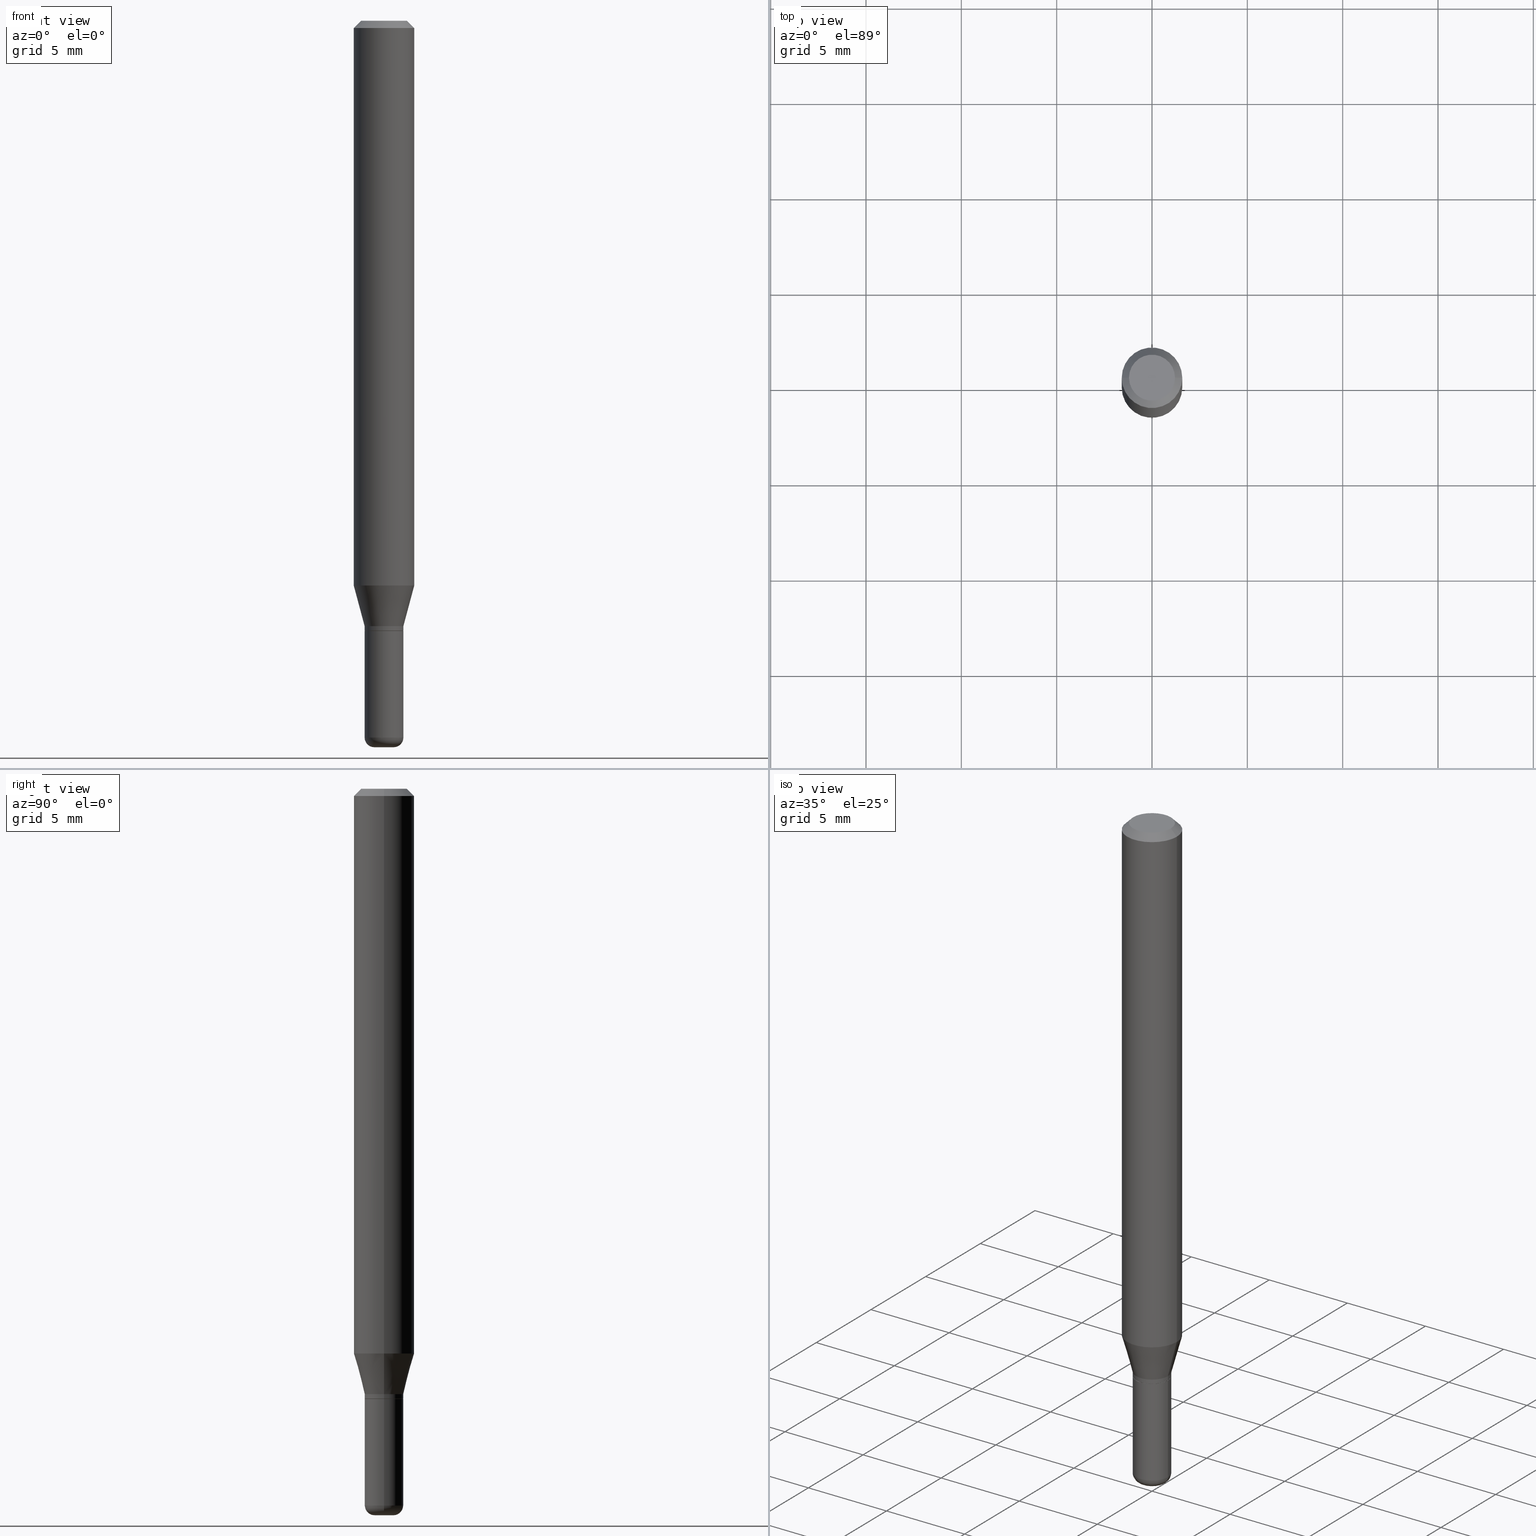
[diagram: canonical four-view strip — front | top / right | iso, engineering-drawing reading convention]
A machine part, canonical four-view strip (front | top / right | iso — engineering-drawing reading convention). The complete STEP part file that produces these views, byte-faithful:
ISO-10303-21;
HEADER;
FILE_DESCRIPTION (( 'STEP AP203' ),
    '1' );
FILE_NAME ('09051.STEP',
    '2024-02-29T21:37:54',
    ( '' ),
    ( '' ),
    'SwSTEP 2.0',
    'SolidWorks 2023',
    '' );
FILE_SCHEMA (( 'CONFIG_CONTROL_DESIGN' ));
ENDSEC;

DATA;
#1 = APPROVAL_DATE_TIME ( #487, #407 ) ;
#2 = PRODUCT_DEFINITION_FORMATION_WITH_SPECIFIED_SOURCE ( 'ANY', '', #144, .NOT_KNOWN. ) ;
#3 = FACE_OUTER_BOUND ( 'NONE', #246, .T. ) ;
#4 = PERSON_AND_ORGANIZATION ( #235, #158 ) ;
#5 = DIRECTION ( 'NONE',  ( 0.7071067811865479058, -7.319954787623257623E-15, -0.7071067811865471286 ) ) ;
#6 = CARTESIAN_POINT ( 'NONE',  ( -0.03950000000000001427, -4.115952879143013491E-15, -1.260000000000000231 ) ) ;
#7 = ORIENTED_EDGE ( 'NONE', *, *, #388, .T. ) ;
#8 = AXIS2_PLACEMENT_3D ( 'NONE', #371, #54, #454 ) ;
#9 = CARTESIAN_POINT ( 'NONE',  ( 0.04000000000000003553, -5.446710888595306494E-15, -1.479999999999999982 ) ) ;
#10 = LINE ( 'NONE', #62, #289 ) ;
#11 = FACE_OUTER_BOUND ( 'NONE', #148, .T. ) ;
#12 = CIRCLE ( 'NONE', #486, 0.06250000000000000000 ) ;
#13 = DIRECTION ( 'NONE',  ( 0.2588190451025207950, 1.565188264969625912E-15, 0.9659258262890682012 ) ) ;
#14 = LINE ( 'NONE', #374, #339 ) ;
#15 = APPROVAL ( #480, 'UNSPECIFIED' ) ;
#16 = CARTESIAN_POINT ( 'NONE',  ( -0.06250000000000000000, 3.840629472727455270E-16, -0.01499999999999970281 ) ) ;
#17 = DIRECTION ( 'NONE',  ( 1.000000000000000000, -6.982962677686269077E-15, 0.000000000000000000 ) ) ;
#18 = AXIS2_PLACEMENT_3D ( 'NONE', #277, #82, #78 ) ;
#19 = CARTESIAN_POINT ( 'NONE',  ( -6.680649051745406845E-45, 9.538196290434862081E-31, 2.731847993664263218E-16 ) ) ;
#20 = ADVANCED_FACE ( 'NONE', ( #113 ), #398, .T. ) ;
#21 = VERTEX_POINT ( 'NONE', #387 ) ;
#22 = EDGE_LOOP ( 'NONE', ( #227, #181, #314, #463 ) ) ;
#23 = ORIENTED_EDGE ( 'NONE', *, *, #336, .F. ) ;
#24 = CARTESIAN_POINT ( 'NONE',  ( 3.056836007731421306E-29, -4.364351673553932471E-15, -1.250000000000000000 ) ) ;
#25 = DIRECTION ( 'NONE',  ( -2.445468806185136597E-29, 3.491481338843145583E-15, 1.000000000000000000 ) ) ;
#26 = ORIENTED_EDGE ( 'NONE', *, *, #286, .F. ) ;
#27 = EDGE_LOOP ( 'NONE', ( #319, #74, #349, #273 ) ) ;
#28 = LINE ( 'NONE', #259, #222 ) ;
#29 = EDGE_CURVE ( 'NONE', #117, #224, #263, .T. ) ;
#30 = ORIENTED_EDGE ( 'NONE', *, *, #89, .T. ) ;
#31 = EDGE_LOOP ( 'NONE', ( #49, #513, #469, #26 ) ) ;
#32 = CARTESIAN_POINT ( 'NONE',  ( 3.668203209277632395E-31, -5.237222008264614861E-17, -0.01499999999999970281 ) ) ;
#33 = EDGE_CURVE ( 'NONE', #468, #21, #83, .T. ) ;
#34 = VERTEX_POINT ( 'NONE', #504 ) ;
#35 = DIRECTION ( 'NONE',  ( -2.445468806185136597E-29, 3.491481338843145583E-15, 1.000000000000000000 ) ) ;
#36 = ORIENTED_EDGE ( 'NONE', *, *, #237, .F. ) ;
#37 = APPLICATION_CONTEXT ( 'configuration controlled 3d designs of mechanical parts and assemblies' ) ;
#38 = VERTEX_POINT ( 'NONE', #143 ) ;
#39 = DATE_AND_TIME ( #238, #192 ) ;
#40 = FACE_OUTER_BOUND ( 'NONE', #436, .T. ) ;
#41 = AXIS2_PLACEMENT_3D ( 'NONE', #44, #35, #80 ) ;
#42 = EDGE_CURVE ( 'NONE', #167, #71, #56, .T. ) ;
#43 = COORDINATED_UNIVERSAL_TIME_OFFSET ( 5, 0, .BEHIND. ) ;
#44 = CARTESIAN_POINT ( 'NONE',  ( 3.619293833154002365E-29, -5.167392381487854879E-15, -1.479999999999999982 ) ) ;
#45 = ORIENTED_EDGE ( 'NONE', *, *, #423, .T. ) ;
#46 = SHAPE_DEFINITION_REPRESENTATION ( #346, #307 ) ;
#47 = DIRECTION ( 'NONE',  ( -2.445468806185136597E-29, 3.491481338843145583E-15, 1.000000000000000000 ) ) ;
#48 = DIRECTION ( 'NONE',  ( -2.445468806185136597E-29, 3.491481338843145583E-15, 1.000000000000000000 ) ) ;
#49 = ORIENTED_EDGE ( 'NONE', *, *, #433, .T. ) ;
#50 = VECTOR ( 'NONE', #324, 39.37007874015748143 ) ;
#51 = CARTESIAN_POINT ( 'NONE',  ( 0.02000000000000000042, -5.307051635041580686E-15, -1.479999999999999982 ) ) ;
#52 = AXIS2_PLACEMENT_3D ( 'NONE', #139, #503, #102 ) ;
#53 = AXIS2_PLACEMENT_3D ( 'NONE', #386, #460, #190 ) ;
#54 = DIRECTION ( 'NONE',  ( -2.445468806185136597E-29, 3.491481338843145583E-15, 1.000000000000000000 ) ) ;
#55 = CARTESIAN_POINT ( 'NONE',  ( 0.04000000000000001471, -4.676839253380393443E-15, -1.259500000000000064 ) ) ;
#56 = CIRCLE ( 'NONE', #350, 0.06250000000000000000 ) ;
#57 = ADVANCED_FACE ( 'NONE', ( #309 ), #448, .T. ) ;
#58 = ORIENTED_EDGE ( 'NONE', *, *, #412, .F. ) ;
#59 = VECTOR ( 'NONE', #252, 39.37007874015748143 ) ;
#60 = CARTESIAN_POINT ( 'NONE',  ( 3.081290695793272291E-29, -4.399266486942364120E-15, -1.260000000000000231 ) ) ;
#61 = ADVANCED_FACE ( 'NONE', ( #258 ), #65, .T. ) ;
#62 = CARTESIAN_POINT ( 'NONE',  ( -0.04000000000000000777, 2.842170943040401296E-16, -1.967574036101962859E-30 ) ) ;
#63 = DIRECTION ( 'NONE',  ( -1.000000000000000000, 6.982962677686266711E-15, 0.000000000000000000 ) ) ;
#64 = CARTESIAN_POINT ( 'NONE',  ( 0.04750000000000000749, -4.035134999187568762E-16, 2.731847993664288856E-16 ) ) ;
#65 = CONICAL_SURFACE ( 'NONE', #474, 0.06250000000000000000, 0.7853981633974488341 ) ;
#66 = DIRECTION ( 'NONE',  ( 1.000000000000000000, -6.982962677686257244E-15, 0.000000000000000000 ) ) ;
#67 = CC_DESIGN_APPROVAL ( #15, ( #97 ) ) ;
#68 = ORIENTED_EDGE ( 'NONE', *, *, #186, .F. ) ;
#69 = FACE_OUTER_BOUND ( 'NONE', #221, .T. ) ;
#70 = ORIENTED_EDGE ( 'NONE', *, *, #375, .T. ) ;
#71 = VERTEX_POINT ( 'NONE', #218 ) ;
#72 = DIRECTION ( 'NONE',  ( 1.000000000000000000, -6.982962677686262766E-15, 0.000000000000000000 ) ) ;
#73 = EDGE_LOOP ( 'NONE', ( #385, #353, #191, #58 ) ) ;
#74 = ORIENTED_EDGE ( 'NONE', *, *, #244, .T. ) ;
#75 = ORIENTED_EDGE ( 'NONE', *, *, #184, .F. ) ;
#76 = CONICAL_SURFACE ( 'NONE', #265, 0.03950000000000001427, 0.7853981633972775267 ) ;
#77 = DATE_AND_TIME ( #400, #466 ) ;
#78 = DIRECTION ( 'NONE',  ( 1.000000000000000000, -6.982962677686259611E-15, 0.000000000000000000 ) ) ;
#79 = PERSON_AND_ORGANIZATION ( #235, #158 ) ;
#80 = DIRECTION ( 'NONE',  ( 1.000000000000000000, -6.982962677686277755E-15, 0.000000000000000000 ) ) ;
#81 = PERSON_AND_ORGANIZATION_ROLE ( 'design_owner' ) ;
#82 = DIRECTION ( 'NONE',  ( -2.445468806185136597E-29, 3.491481338843145583E-15, 1.000000000000000000 ) ) ;
#83 = CIRCLE ( 'NONE', #376, 0.04750000000000000749 ) ;
#84 = CIRCLE ( 'NONE', #41, 0.04000000000000003553 ) ;
#85 = COORDINATED_UNIVERSAL_TIME_OFFSET ( 5, 0, .BEHIND. ) ;
#86 = CIRCLE ( 'NONE', #340, 0.03950000000000001427 ) ;
#87 = CARTESIAN_POINT ( 'NONE',  ( 3.081290695793272291E-29, -4.399266486942364120E-15, -1.260000000000000231 ) ) ;
#88 = ORIENTED_EDGE ( 'NONE', *, *, #375, .F. ) ;
#89 = EDGE_CURVE ( 'NONE', #311, #312, #170, .T. ) ;
#90 = CARTESIAN_POINT ( 'NONE',  ( -0.04000000000000003553, -4.499112339911069567E-15, -1.479999999999999982 ) ) ;
#91 = CARTESIAN_POINT ( 'NONE',  ( 0.06250000000000000000, -4.364351673553916694E-16, 3.047610484872459871E-30 ) ) ;
#92 = APPROVAL ( #328, 'UNSPECIFIED' ) ;
#93 = AXIS2_PLACEMENT_3D ( 'NONE', #297, #175, #453 ) ;
#94 = DIRECTION ( 'NONE',  ( 2.438088387897960049E-29, -3.491481338843145188E-15, -1.000000000000000000 ) ) ;
#95 = AXIS2_PLACEMENT_3D ( 'NONE', #308, #462, #217 ) ;
#96 = DIRECTION ( 'NONE',  ( -2.445468806185136877E-29, 3.491481338843145188E-15, 1.000000000000000000 ) ) ;
#97 = PRODUCT_DEFINITION ( 'UNKNOWN', '', #2, #253 ) ;
#98 = CARTESIAN_POINT ( 'NONE',  ( -0.04000000000000001471, -4.113303651968902290E-15, -1.259500000000000064 ) ) ;
#99 = CIRCLE ( 'NONE', #116, 0.03950000000000001427 ) ;
#100 = CYLINDRICAL_SURFACE ( 'NONE', #93, 0.04000000000000001471 ) ;
#101 = APPROVAL_PERSON_ORGANIZATION ( #355, #407, #280 ) ;
#102 = DIRECTION ( 'NONE',  ( 1.000000000000000000, -6.982962677686271444E-15, 0.000000000000000000 ) ) ;
#103 = CARTESIAN_POINT ( 'NONE',  ( 0.04000000000000001471, -2.793185071074507769E-16, 1.950470710318375438E-30 ) ) ;
#104 = DIRECTION ( 'NONE',  ( 1.000000000000000000, -6.982962677686266711E-15, 0.000000000000000000 ) ) ;
#105 = DIRECTION ( 'NONE',  ( 1.000000000000000000, -6.982962677686269077E-15, 0.000000000000000000 ) ) ;
#106 = TOROIDAL_SURFACE ( 'NONE', #164, 0.02000000000000000042, 0.02000000000000003164 ) ;
#107 = APPLICATION_CONTEXT ( 'configuration controlled 3d designs of mechanical parts and assemblies' ) ;
#108 = CARTESIAN_POINT ( 'NONE',  ( 3.668203209277632395E-31, -5.237222008264614861E-17, -0.01499999999999970281 ) ) ;
#109 = AXIS2_PLACEMENT_3D ( 'NONE', #389, #146, #220 ) ;
#110 = DIRECTION ( 'NONE',  ( -2.445468806185136597E-29, 3.491481338843145583E-15, 1.000000000000000000 ) ) ;
#111 = ORIENTED_EDGE ( 'NONE', *, *, #138, .T. ) ;
#112 = EDGE_CURVE ( 'NONE', #21, #468, #128, .T. ) ;
#113 = FACE_OUTER_BOUND ( 'NONE', #394, .T. ) ;
#114 = APPROVAL_ROLE ( '' ) ;
#115 = CARTESIAN_POINT ( 'NONE',  ( -0.02000000000000000389, -4.989144374148256283E-15, -1.500000000000000222 ) ) ;
#116 = AXIS2_PLACEMENT_3D ( 'NONE', #60, #332, #256 ) ;
#117 = VERTEX_POINT ( 'NONE', #90 ) ;
#118 = AXIS2_PLACEMENT_3D ( 'NONE', #268, #152, #72 ) ;
#119 = DATE_TIME_ROLE ( 'classification_date' ) ;
#120 = ADVANCED_FACE ( 'NONE', ( #397 ), #76, .T. ) ;
#121 = DIRECTION ( 'NONE',  ( -2.445468806185136877E-29, 3.491481338843145188E-15, 1.000000000000000000 ) ) ;
#122 = VERTEX_POINT ( 'NONE', #127 ) ;
#123 = PERSON_AND_ORGANIZATION ( #235, #158 ) ;
#124 = PLANE ( 'NONE',  #189 ) ;
#125 = ORIENTED_EDGE ( 'NONE', *, *, #112, .F. ) ;
#126 = SECURITY_CLASSIFICATION_LEVEL ( 'unclassified' ) ;
#127 = CARTESIAN_POINT ( 'NONE',  ( 0.06250000000000000000, -4.507603161528897181E-15, -1.166028856829700366 ) ) ;
#128 = CIRCLE ( 'NONE', #377, 0.04750000000000000749 ) ;
#129 = COORDINATED_UNIVERSAL_TIME_OFFSET ( 5, 0, .BEHIND. ) ;
#130 = DIRECTION ( 'NONE',  ( 1.000000000000000000, -6.982962677686266711E-15, 4.876176775795935793E-29 ) ) ;
#131 = ADVANCED_FACE ( 'NONE', ( #405 ), #124, .F. ) ;
#132 = FACE_OUTER_BOUND ( 'NONE', #282, .T. ) ;
#133 = CARTESIAN_POINT ( 'NONE',  ( 3.582686580359766038E-29, -5.359686688179453325E-15, -1.500000000000000222 ) ) ;
#134 = CIRCLE ( 'NONE', #157, 0.04000000000000001471 ) ;
#135 = CARTESIAN_POINT ( 'NONE',  ( 0.000000000000000000, 0.000000000000000000, 0.000000000000000000 ) ) ;
#136 = CYLINDRICAL_SURFACE ( 'NONE', #242, 0.04000000000000000777 ) ;
#137 = DIRECTION ( 'NONE',  ( 1.000000000000000000, -6.982962677686266711E-15, 4.876176775795935793E-29 ) ) ;
#138 = EDGE_CURVE ( 'NONE', #71, #167, #213, .T. ) ;
#139 = CARTESIAN_POINT ( 'NONE',  ( 3.056836007731421306E-29, -4.364351673553932471E-15, -1.250000000000000000 ) ) ;
#140 = ORIENTED_EDGE ( 'NONE', *, *, #89, .F. ) ;
#141 = CARTESIAN_POINT ( 'NONE',  ( 3.081290695793272291E-29, -4.399266486942364120E-15, -1.260000000000000231 ) ) ;
#142 = PRODUCT_RELATED_PRODUCT_CATEGORY ( 'detail', '', ( #144 ) ) ;
#143 = CARTESIAN_POINT ( 'NONE',  ( -0.04000000000000000083, -4.499112339911069567E-15, -1.260000000000000231 ) ) ;
#144 = PRODUCT ( '09051', '09051', '', ( #380 ) ) ;
#145 = CARTESIAN_POINT ( 'NONE',  ( 3.668203209277632395E-31, -5.237222008264614861E-17, -0.01499999999999970281 ) ) ;
#146 = DIRECTION ( 'NONE',  ( 7.105427357601001859E-15, 1.000000000000000000, -3.491481338843145583E-15 ) ) ;
#147 = TOROIDAL_SURFACE ( 'NONE', #329, 0.02000000000000000042, 0.02000000000000003164 ) ;
#148 = EDGE_LOOP ( 'NONE', ( #299, #506, #512, #402 ) ) ;
#149 = ADVANCED_FACE ( 'NONE', ( #3 ), #488, .T. ) ;
#150 = EDGE_LOOP ( 'NONE', ( #45, #479, #36, #514 ) ) ;
#151 = VERTEX_POINT ( 'NONE', #401 ) ;
#152 = DIRECTION ( 'NONE',  ( -2.445468806185136597E-29, 3.491481338843145583E-15, 1.000000000000000000 ) ) ;
#153 = ORIENTED_EDGE ( 'NONE', *, *, #388, .F. ) ;
#154 = ORIENTED_EDGE ( 'NONE', *, *, #433, .F. ) ;
#155 = PERSON_AND_ORGANIZATION_ROLE ( 'creator' ) ;
#156 = DIRECTION ( 'NONE',  ( -2.438088387897960049E-29, 3.491481338843145188E-15, 1.000000000000000000 ) ) ;
#157 = AXIS2_PLACEMENT_3D ( 'NONE', #207, #366, #327 ) ;
#158 = ORGANIZATION ( 'UNSPECIFIED', 'UNSPECIFIED', '' ) ;
#159 = CARTESIAN_POINT ( 'NONE',  ( -0.06250000000000000000, 4.440892098500626162E-16, -3.074334431409316114E-30 ) ) ;
#160 = CARTESIAN_POINT ( 'NONE',  ( 0.06250000000000000000, -4.811533449433669144E-16, -0.01499999999999970281 ) ) ;
#161 = COORDINATED_UNIVERSAL_TIME_OFFSET ( 5, 0, .BEHIND. ) ;
#162 = DIRECTION ( 'NONE',  ( -2.445468806185136597E-29, 3.491481338843145583E-15, 1.000000000000000000 ) ) ;
#163 = CLOSED_SHELL ( 'NONE', ( #317, #120, #61, #285, #485, #20, #149, #57, #404, #131, #451, #174 ) ) ;
#164 = AXIS2_PLACEMENT_3D ( 'NONE', #321, #169, #251 ) ;
#165 = ORIENTED_EDGE ( 'NONE', *, *, #484, .F. ) ;
#166 = LINE ( 'NONE', #160, #219 ) ;
#167 = VERTEX_POINT ( 'NONE', #331 ) ;
#168 = CARTESIAN_POINT ( 'NONE',  ( 2.793185071074814439E-16, 0.03999999999999560157, -1.260000000000000453 ) ) ;
#169 = DIRECTION ( 'NONE',  ( -2.445468806185136597E-29, 3.491481338843145583E-15, 1.000000000000000000 ) ) ;
#170 = CIRCLE ( 'NONE', #415, 0.04000000000000001471 ) ;
#171 = CYLINDRICAL_SURFACE ( 'NONE', #8, 0.04000000000000001471 ) ;
#172 = APPROVAL_PERSON_ORGANIZATION ( #396, #92, #437 ) ;
#173 = DIRECTION ( 'NONE',  ( -2.445468806185136597E-29, 3.491481338843145583E-15, 1.000000000000000000 ) ) ;
#174 = ADVANCED_FACE ( 'NONE', ( #40 ), #442, .T. ) ;
#175 = DIRECTION ( 'NONE',  ( -2.445468806185136597E-29, 3.491481338843145583E-15, 1.000000000000000000 ) ) ;
#176 = VERTEX_POINT ( 'NONE', #6 ) ;
#177 = AXIS2_PLACEMENT_3D ( 'NONE', #206, #395, #241 ) ;
#178 = DIRECTION ( 'NONE',  ( -2.445468806185136597E-29, 3.491481338843145583E-15, 1.000000000000000000 ) ) ;
#179 = ORIENTED_EDGE ( 'NONE', *, *, #42, .T. ) ;
#180 = LOCAL_TIME ( 16, 37, 54.00000000000000000, #403 ) ;
#181 = ORIENTED_EDGE ( 'NONE', *, *, #184, .T. ) ;
#182 = DIRECTION ( 'NONE',  ( 1.000000000000000000, -6.982962677686271444E-15, 0.000000000000000000 ) ) ;
#183 = EDGE_LOOP ( 'NONE', ( #422, #197, #179, #153 ) ) ;
#184 = EDGE_CURVE ( 'NONE', #151, #71, #239, .T. ) ;
#185 = CARTESIAN_POINT ( 'NONE',  ( 3.081290695793272291E-29, -4.399266486942364120E-15, -1.260000000000000231 ) ) ;
#186 = EDGE_CURVE ( 'NONE', #468, #167, #166, .T. ) ;
#187 = DIRECTION ( 'NONE',  ( 2.445468806185136597E-29, -3.491481338843145583E-15, -1.000000000000000000 ) ) ;
#188 = ORIENTED_EDGE ( 'NONE', *, *, #262, .T. ) ;
#189 = AXIS2_PLACEMENT_3D ( 'NONE', #87, #156, #434 ) ;
#190 = DIRECTION ( 'NONE',  ( 1.000000000000000000, -6.982962677686271444E-15, 0.000000000000000000 ) ) ;
#191 = ORIENTED_EDGE ( 'NONE', *, *, #262, .F. ) ;
#192 = LOCAL_TIME ( 16, 37, 54.00000000000000000, #85 ) ;
#193 = ORIENTED_EDGE ( 'NONE', *, *, #250, .F. ) ;
#194 = MANIFOLD_SOLID_BREP ( 'Body-Move/Copy2[2]', #163 ) ;
#195 = VERTEX_POINT ( 'NONE', #245 ) ;
#196 = PERSON_AND_ORGANIZATION_ROLE ( 'design_supplier' ) ;
#197 = ORIENTED_EDGE ( 'NONE', *, *, #186, .T. ) ;
#198 = EDGE_CURVE ( 'NONE', #312, #311, #134, .T. ) ;
#199 = FACE_OUTER_BOUND ( 'NONE', #27, .T. ) ;
#200 = CC_DESIGN_PERSON_AND_ORGANIZATION_ASSIGNMENT ( #482, #81, ( #144 ) ) ;
#201 = CALENDAR_DATE ( 2024, 29, 2 ) ;
#202 = CARTESIAN_POINT ( 'NONE',  ( 0.000000000000000000, 0.000000000000000000, 0.000000000000000000 ) ) ;
#203 = AXIS2_PLACEMENT_3D ( 'NONE', #440, #208, #478 ) ;
#204 = SECURITY_CLASSIFICATION ( '', '', #126 ) ;
#205 = DATE_AND_TIME ( #283, #267 ) ;
#206 = CARTESIAN_POINT ( 'NONE',  ( 3.081290695793272291E-29, -4.399266486942364120E-15, -1.260000000000000231 ) ) ;
#207 = CARTESIAN_POINT ( 'NONE',  ( 3.080067961390179490E-29, -4.397520746272941828E-15, -1.259500000000000064 ) ) ;
#208 = DIRECTION ( 'NONE',  ( -2.445468806185136597E-29, 3.491481338843145583E-15, 1.000000000000000000 ) ) ;
#209 = CIRCLE ( 'NONE', #18, 0.04000000000000000083 ) ;
#210 = DIRECTION ( 'NONE',  ( 1.000000000000000000, -6.982962677686272233E-15, 0.000000000000000000 ) ) ;
#211 = DIRECTION ( 'NONE',  ( 1.000000000000000000, -6.982962677686266711E-15, 4.876176775795935793E-29 ) ) ;
#212 = PLANE ( 'NONE',  #295 ) ;
#213 = CIRCLE ( 'NONE', #334, 0.06250000000000000000 ) ;
#214 = LINE ( 'NONE', #16, #391 ) ;
#215 = CYLINDRICAL_SURFACE ( 'NONE', #493, 0.06250000000000000000 ) ;
#216 = EDGE_CURVE ( 'NONE', #312, #390, #446, .T. ) ;
#217 = DIRECTION ( 'NONE',  ( 1.000000000000000000, 0.000000000000000000, 0.000000000000000000 ) ) ;
#218 = CARTESIAN_POINT ( 'NONE',  ( -0.06250000000000000000, -1.617680897278012693E-15, -0.01499999999999970281 ) ) ;
#219 = VECTOR ( 'NONE', #5, 39.37007874015748143 ) ;
#220 = DIRECTION ( 'NONE',  ( -1.000000000000000000, 7.105427357601009747E-15, 0.000000000000000000 ) ) ;
#221 = EDGE_LOOP ( 'NONE', ( #316, #421, #223, #140 ) ) ;
#222 = VECTOR ( 'NONE', #420, 39.37007874015748854 ) ;
#223 = ORIENTED_EDGE ( 'NONE', *, *, #354, .T. ) ;
#224 = VERTEX_POINT ( 'NONE', #9 ) ;
#225 = DIRECTION ( 'NONE',  ( 1.000000000000000000, -6.982962677686282488E-15, 0.000000000000000000 ) ) ;
#226 = DIRECTION ( 'NONE',  ( -2.445468806185136597E-29, 3.491481338843145583E-15, 1.000000000000000000 ) ) ;
#227 = ORIENTED_EDGE ( 'NONE', *, *, #237, .T. ) ;
#228 = CARTESIAN_POINT ( 'NONE',  ( 0.02000000000000000389, -5.376881261818443984E-15, -1.500000000000000222 ) ) ;
#229 = VERTEX_POINT ( 'NONE', #115 ) ;
#230 = EDGE_LOOP ( 'NONE', ( #154, #475 ) ) ;
#231 = CIRCLE ( 'NONE', #300, 0.04000000000000000083 ) ;
#232 = CARTESIAN_POINT ( 'NONE',  ( 0.03950000000000001427, -4.675093512710971939E-15, -1.260000000000000231 ) ) ;
#233 = DIRECTION ( 'NONE',  ( 1.000000000000000000, -6.982962677686277755E-15, 0.000000000000000000 ) ) ;
#234 = EDGE_LOOP ( 'NONE', ( #193, #357, #384, #507 ) ) ;
#235 = PERSON ( 'UNSPECIFIED', 'UNSPECIFIED', 'UNSPECIFIED', ('UNSPECIFIED'), ('UNSPECIFIED'), ('UNSPECIFIED') ) ;
#236 = CARTESIAN_POINT ( 'NONE',  ( 0.000000000000000000, 0.000000000000000000, 0.000000000000000000 ) ) ;
#237 = EDGE_CURVE ( 'NONE', #122, #151, #12, .T. ) ;
#238 = CALENDAR_DATE ( 2024, 29, 2 ) ;
#239 = LINE ( 'NONE', #159, #431 ) ;
#240 = PERSON_AND_ORGANIZATION ( #235, #158 ) ;
#241 = DIRECTION ( 'NONE',  ( 1.000000000000000000, -6.982962677686259611E-15, 0.000000000000000000 ) ) ;
#242 = AXIS2_PLACEMENT_3D ( 'NONE', #135, #449, #137 ) ;
#243 = CIRCLE ( 'NONE', #383, 0.02000000000000000389 ) ;
#244 = EDGE_CURVE ( 'NONE', #229, #459, #255, .T. ) ;
#245 = CARTESIAN_POINT ( 'NONE',  ( 0.04000000000000000083, -4.678584994049814947E-15, -1.260000000000000231 ) ) ;
#246 = EDGE_LOOP ( 'NONE', ( #75, #310, #515, #518 ) ) ;
#247 = PERSON_AND_ORGANIZATION_ROLE ( 'creator' ) ;
#248 = CARTESIAN_POINT ( 'NONE',  ( -0.04000000000000001471, 2.842170943040401789E-16, -1.967574036101963210E-30 ) ) ;
#249 = DIRECTION ( 'NONE',  ( -2.445468806185136597E-29, 3.491481338843145583E-15, 1.000000000000000000 ) ) ;
#250 = EDGE_CURVE ( 'NONE', #117, #38, #281, .T. ) ;
#251 = DIRECTION ( 'NONE',  ( 1.000000000000000000, -6.982962677686278543E-15, 4.883557194083116264E-29 ) ) ;
#252 = DIRECTION ( 'NONE',  ( 0.7071067811864267805, -2.468850131080992517E-15, 0.7071067811866682540 ) ) ;
#253 = DESIGN_CONTEXT ( 'detailed design', #107, 'design' ) ;
#254 = FACE_OUTER_BOUND ( 'NONE', #502, .T. ) ;
#255 = CIRCLE ( 'NONE', #203, 0.02000000000000000389 ) ;
#256 = DIRECTION ( 'NONE',  ( 1.000000000000000000, -6.982962677686269077E-15, 0.000000000000000000 ) ) ;
#257 = DIRECTION ( 'NONE',  ( -1.000000000000000000, 6.982962677686265922E-15, -4.876176775795935793E-29 ) ) ;
#258 = FACE_OUTER_BOUND ( 'NONE', #183, .T. ) ;
#259 = CARTESIAN_POINT ( 'NONE',  ( -0.04000000000000000083, -4.080134579249892145E-15, -1.250000000000000000 ) ) ;
#260 = DIRECTION ( 'NONE',  ( -2.445468806185136597E-29, 3.491481338843145583E-15, 1.000000000000000000 ) ) ;
#261 = EDGE_CURVE ( 'NONE', #38, #195, #209, .T. ) ;
#262 = EDGE_CURVE ( 'NONE', #195, #38, #360, .T. ) ;
#263 = CIRCLE ( 'NONE', #510, 0.04000000000000003553 ) ;
#264 = ORIENTED_EDGE ( 'NONE', *, *, #450, .F. ) ;
#265 = AXIS2_PLACEMENT_3D ( 'NONE', #365, #162, #368 ) ;
#266 = DIRECTION ( 'NONE',  ( 2.445468806185136597E-29, -3.491481338843145583E-15, -1.000000000000000000 ) ) ;
#267 = LOCAL_TIME ( 16, 37, 54.00000000000000000, #43 ) ;
#268 = CARTESIAN_POINT ( 'NONE',  ( 2.851487196488747125E-29, -4.071167994173504722E-15, -1.166028856829700366 ) ) ;
#269 = ORIENTED_EDGE ( 'NONE', *, *, #261, .T. ) ;
#270 = EDGE_CURVE ( 'NONE', #224, #117, #84, .T. ) ;
#271 = LENGTH_MEASURE_WITH_UNIT ( LENGTH_MEASURE( 0.02539999999999999897 ), #301 );
#272 = CARTESIAN_POINT ( 'NONE',  ( 3.056836007731421306E-29, -4.364351673553932471E-15, -1.250000000000000000 ) ) ;
#273 = ORIENTED_EDGE ( 'NONE', *, *, #29, .F. ) ;
#274 = AXIS2_PLACEMENT_3D ( 'NONE', #236, #47, #130 ) ;
#275 = APPLICATION_PROTOCOL_DEFINITION ( 'international standard', 'config_control_design', 1994, #107 ) ;
#276 = ADVANCED_FACE ( 'NONE', ( #199 ), #106, .T. ) ;
#277 = CARTESIAN_POINT ( 'NONE',  ( 3.081290695793272291E-29, -4.399266486942364120E-15, -1.260000000000000231 ) ) ;
#278 = APPROVAL_PERSON_ORGANIZATION ( #439, #15, #114 ) ;
#279 = EDGE_LOOP ( 'NONE', ( #88, #264 ) ) ;
#280 = APPROVAL_ROLE ( '' ) ;
#281 = LINE ( 'NONE', #248, #351 ) ;
#282 = EDGE_LOOP ( 'NONE', ( #306, #356 ) ) ;
#283 = CALENDAR_DATE ( 2024, 29, 2 ) ;
#284 = DIRECTION ( 'NONE',  ( -2.445468806185136597E-29, 3.491481338843145583E-15, 1.000000000000000000 ) ) ;
#285 = ADVANCED_FACE ( 'NONE', ( #516 ), #215, .T. ) ;
#286 = EDGE_CURVE ( 'NONE', #459, #224, #511, .T. ) ;
#287 = PERSON_AND_ORGANIZATION_ROLE ( 'classification_officer' ) ;
#288 = DIRECTION ( 'NONE',  ( 1.000000000000000000, -6.982962677686266711E-15, 0.000000000000000000 ) ) ;
#289 = VECTOR ( 'NONE', #96, 39.37007874015748143 ) ;
#290 = APPROVAL_DATE_TIME ( #77, #15 ) ;
#291 = DIRECTION ( 'NONE',  ( 1.000000000000000000, -6.982962677686266711E-15, 4.876176775795935793E-29 ) ) ;
#292 = ADVANCED_FACE ( 'NONE', ( #379 ), #212, .F. ) ;
#293 = PLANE ( 'NONE',  #456 ) ;
#294 = DIRECTION ( 'NONE',  ( -2.438088387897960049E-29, 3.491481338843145188E-15, 1.000000000000000000 ) ) ;
#295 = AXIS2_PLACEMENT_3D ( 'NONE', #133, #294, #494 ) ;
#296 = CIRCLE ( 'NONE', #109, 0.02000000000000003511 ) ;
#297 = CARTESIAN_POINT ( 'NONE',  ( 0.000000000000000000, 0.000000000000000000, 0.000000000000000000 ) ) ;
#298 = FACE_OUTER_BOUND ( 'NONE', #73, .T. ) ;
#299 = ORIENTED_EDGE ( 'NONE', *, *, #198, .T. ) ;
#300 = AXIS2_PLACEMENT_3D ( 'NONE', #24, #110, #348 ) ;
#301 =( LENGTH_UNIT ( ) NAMED_UNIT ( * ) SI_UNIT ( $, .METRE. ) );
#302 = ORIENTED_EDGE ( 'NONE', *, *, #354, .F. ) ;
#303 = ADVANCED_FACE ( 'NONE', ( #298 ), #171, .T. ) ;
#304 = DIRECTION ( 'NONE',  ( -2.445468806185136597E-29, 3.491481338843145583E-15, 1.000000000000000000 ) ) ;
#305 = DIRECTION ( 'NONE',  ( -1.000000000000000000, 6.982962677686266711E-15, 0.000000000000000000 ) ) ;
#306 = ORIENTED_EDGE ( 'NONE', *, *, #112, .T. ) ;
#307 = ADVANCED_BREP_SHAPE_REPRESENTATION ( '09051', ( #370, #194, #95 ), #443 ) ;
#308 = CARTESIAN_POINT ( 'NONE',  ( 0.000000000000000000, 0.000000000000000000, 0.000000000000000000 ) ) ;
#309 = FACE_OUTER_BOUND ( 'NONE', #473, .T. ) ;
#310 = ORIENTED_EDGE ( 'NONE', *, *, #424, .T. ) ;
#311 = VERTEX_POINT ( 'NONE', #98 ) ;
#312 = VERTEX_POINT ( 'NONE', #55 ) ;
#313 = EDGE_CURVE ( 'NONE', #122, #167, #372, .T. ) ;
#314 = ORIENTED_EDGE ( 'NONE', *, *, #42, .F. ) ;
#315 =( CONVERSION_BASED_UNIT ( 'INCH', #271 ) LENGTH_UNIT ( ) NAMED_UNIT ( #497 ) );
#316 = ORIENTED_EDGE ( 'NONE', *, *, #458, .F. ) ;
#317 = ADVANCED_FACE ( 'NONE', ( #11 ), #136, .T. ) ;
#318 = DIRECTION ( 'NONE',  ( -2.445468806185136597E-29, 3.491481338843145583E-15, 1.000000000000000000 ) ) ;
#319 = ORIENTED_EDGE ( 'NONE', *, *, #464, .F. ) ;
#320 = AXIS2_PLACEMENT_3D ( 'NONE', #202, #438, #291 ) ;
#321 = CARTESIAN_POINT ( 'NONE',  ( 3.619293833154002365E-29, -5.167392381487854879E-15, -1.479999999999999982 ) ) ;
#322 = ORIENTED_EDGE ( 'NONE', *, *, #472, .F. ) ;
#323 = ADVANCED_FACE ( 'NONE', ( #498 ), #100, .T. ) ;
#324 = DIRECTION ( 'NONE',  ( -2.445468806185136877E-29, 3.491481338843145188E-15, 1.000000000000000000 ) ) ;
#325 = CC_DESIGN_PERSON_AND_ORGANIZATION_ASSIGNMENT ( #123, #287, ( #204 ) ) ;
#326 = DATE_TIME_ROLE ( 'creation_date' ) ;
#327 = DIRECTION ( 'NONE',  ( 1.000000000000000000, -6.982962677686257244E-15, 0.000000000000000000 ) ) ;
#328 = APPROVAL_STATUS ( 'not_yet_approved' ) ;
#329 = AXIS2_PLACEMENT_3D ( 'NONE', #499, #249, #413 ) ;
#330 = CARTESIAN_POINT ( 'NONE',  ( 0.04000000000000000777, -2.793185071074507276E-16, 1.950470710318374738E-30 ) ) ;
#331 = CARTESIAN_POINT ( 'NONE',  ( 0.06250000000000000000, -4.888073874380378612E-16, -0.01499999999999970281 ) ) ;
#332 = DIRECTION ( 'NONE',  ( -2.445468806185136597E-29, 3.491481338843145583E-15, 1.000000000000000000 ) ) ;
#333 = DIRECTION ( 'NONE',  ( -6.982962677686266711E-15, -1.000000000000000000, 3.491481338843145583E-15 ) ) ;
#334 = AXIS2_PLACEMENT_3D ( 'NONE', #362, #48, #288 ) ;
#335 = PLANE ( 'NONE',  #441 ) ;
#336 = EDGE_CURVE ( 'NONE', #311, #34, #10, .T. ) ;
#337 = LINE ( 'NONE', #490, #59 ) ;
#338 = DIRECTION ( 'NONE',  ( -2.445468806185136597E-29, 3.491481338843145583E-15, 1.000000000000000000 ) ) ;
#339 = VECTOR ( 'NONE', #13, 39.37007874015748854 ) ;
#340 = AXIS2_PLACEMENT_3D ( 'NONE', #185, #178, #17 ) ;
#341 = LINE ( 'NONE', #428, #452 ) ;
#342 = DIRECTION ( 'NONE',  ( -2.445468806185136597E-29, 3.491481338843145583E-15, 1.000000000000000000 ) ) ;
#343 = APPLICATION_PROTOCOL_DEFINITION ( 'international standard', 'config_control_design', 1994, #37 ) ;
#344 = CC_DESIGN_DATE_AND_TIME_ASSIGNMENT ( #205, #326, ( #97 ) ) ;
#345 = DIRECTION ( 'NONE',  ( 1.000000000000000000, -6.982962677686266711E-15, 4.852736867747365086E-29 ) ) ;
#346 = PRODUCT_DEFINITION_SHAPE ( 'NONE', 'NONE',  #97 ) ;
#347 = ORIENTED_EDGE ( 'NONE', *, *, #458, .T. ) ;
#348 = DIRECTION ( 'NONE',  ( 1.000000000000000000, -6.982962677686271444E-15, 0.000000000000000000 ) ) ;
#349 = ORIENTED_EDGE ( 'NONE', *, *, #286, .T. ) ;
#350 = AXIS2_PLACEMENT_3D ( 'NONE', #145, #25, #104 ) ;
#351 = VECTOR ( 'NONE', #406, 39.37007874015748143 ) ;
#352 = FACE_OUTER_BOUND ( 'NONE', #150, .T. ) ;
#353 = ORIENTED_EDGE ( 'NONE', *, *, #250, .T. ) ;
#354 = EDGE_CURVE ( 'NONE', #509, #312, #337, .T. ) ;
#355 = PERSON_AND_ORGANIZATION ( #235, #158 ) ;
#356 = ORIENTED_EDGE ( 'NONE', *, *, #33, .T. ) ;
#357 = ORIENTED_EDGE ( 'NONE', *, *, #29, .T. ) ;
#358 = ORIENTED_EDGE ( 'NONE', *, *, #198, .F. ) ;
#359 = ADVANCED_FACE ( 'NONE', ( #378 ), #147, .T. ) ;
#360 = CIRCLE ( 'NONE', #177, 0.04000000000000000083 ) ;
#361 = DATE_AND_TIME ( #364, #457 ) ;
#362 = CARTESIAN_POINT ( 'NONE',  ( 3.668203209277632395E-31, -5.237222008264614861E-17, -0.01499999999999970281 ) ) ;
#363 = CONICAL_SURFACE ( 'NONE', #435, 0.03950000000000001427, 0.7853981633972775267 ) ;
#364 = CALENDAR_DATE ( 2024, 29, 2 ) ;
#365 = CARTESIAN_POINT ( 'NONE',  ( 3.081290695793272291E-29, -4.399266486942364120E-15, -1.260000000000000231 ) ) ;
#366 = DIRECTION ( 'NONE',  ( -2.445468806185136597E-29, 3.491481338843145583E-15, 1.000000000000000000 ) ) ;
#367 = EDGE_CURVE ( 'NONE', #390, #122, #14, .T. ) ;
#368 = DIRECTION ( 'NONE',  ( 1.000000000000000000, -6.982962677686269077E-15, 0.000000000000000000 ) ) ;
#369 = CC_DESIGN_PERSON_AND_ORGANIZATION_ASSIGNMENT ( #240, #247, ( #97 ) ) ;
#370 = MANIFOLD_SOLID_BREP ( 'Body-Move/Copy2[1]', #492 ) ;
#371 = CARTESIAN_POINT ( 'NONE',  ( 0.000000000000000000, 0.000000000000000000, 0.000000000000000000 ) ) ;
#372 = LINE ( 'NONE', #91, #465 ) ;
#373 = ADVANCED_FACE ( 'NONE', ( #254 ), #335, .F. ) ;
#374 = CARTESIAN_POINT ( 'NONE',  ( 0.04000000000000000083, -4.643670180661383298E-15, -1.250000000000000000 ) ) ;
#375 = EDGE_CURVE ( 'NONE', #509, #176, #99, .T. ) ;
#376 = AXIS2_PLACEMENT_3D ( 'NONE', #392, #342, #345 ) ;
#377 = AXIS2_PLACEMENT_3D ( 'NONE', #19, #260, #419 ) ;
#378 = FACE_OUTER_BOUND ( 'NONE', #31, .T. ) ;
#379 = FACE_OUTER_BOUND ( 'NONE', #230, .T. ) ;
#380 = MECHANICAL_CONTEXT ( 'NONE', #37, 'mechanical' ) ;
#381 = DIRECTION ( 'NONE',  ( -2.445468806185136597E-29, 3.491481338843145583E-15, 1.000000000000000000 ) ) ;
#382 = VECTOR ( 'NONE', #425, 39.37007874015748143 ) ;
#383 = AXIS2_PLACEMENT_3D ( 'NONE', #508, #338, #225 ) ;
#384 = ORIENTED_EDGE ( 'NONE', *, *, #412, .T. ) ;
#385 = ORIENTED_EDGE ( 'NONE', *, *, #270, .T. ) ;
#386 = CARTESIAN_POINT ( 'NONE',  ( 3.056836007731421306E-29, -4.364351673553932471E-15, -1.250000000000000000 ) ) ;
#387 = CARTESIAN_POINT ( 'NONE',  ( -0.04750000000000000749, 3.578768372314221353E-16, 2.731847993664239060E-16 ) ) ;
#388 = EDGE_CURVE ( 'NONE', #21, #71, #214, .T. ) ;
#389 = CARTESIAN_POINT ( 'NONE',  ( -0.02000000000000000042, -5.025283834335834715E-15, -1.479999999999999982 ) ) ;
#390 = VERTEX_POINT ( 'NONE', #417 ) ;
#391 = VECTOR ( 'NONE', #491, 39.37007874015748143 ) ;
#392 = CARTESIAN_POINT ( 'NONE',  ( -6.680649051745406845E-45, 9.538196290434862081E-31, 2.731847993664263218E-16 ) ) ;
#393 = CC_DESIGN_APPROVAL ( #92, ( #2 ) ) ;
#394 = EDGE_LOOP ( 'NONE', ( #165, #418, #432, #426 ) ) ;
#395 = DIRECTION ( 'NONE',  ( -2.445468806185136597E-29, 3.491481338843145583E-15, 1.000000000000000000 ) ) ;
#396 = PERSON_AND_ORGANIZATION ( #235, #158 ) ;
#397 = FACE_OUTER_BOUND ( 'NONE', #471, .T. ) ;
#398 = CONICAL_SURFACE ( 'NONE', #430, 0.04000000000000000083, 0.2617993877991495189 ) ;
#399 = AXIS2_PLACEMENT_3D ( 'NONE', #51, #333, #210 ) ;
#400 = CALENDAR_DATE ( 2024, 29, 2 ) ;
#401 = CARTESIAN_POINT ( 'NONE',  ( -0.06250000000000000000, -3.627078784323442106E-15, -1.166028856829700366 ) ) ;
#402 = ORIENTED_EDGE ( 'NONE', *, *, #216, .F. ) ;
#403 = COORDINATED_UNIVERSAL_TIME_OFFSET ( 5, 0, .BEHIND. ) ;
#404 = ADVANCED_FACE ( 'NONE', ( #132 ), #293, .F. ) ;
#405 = FACE_OUTER_BOUND ( 'NONE', #279, .T. ) ;
#406 = DIRECTION ( 'NONE',  ( -2.445468806185136877E-29, 3.491481338843145188E-15, 1.000000000000000000 ) ) ;
#407 = APPROVAL ( #444, 'UNSPECIFIED' ) ;
#408 = UNCERTAINTY_MEASURE_WITH_UNIT (LENGTH_MEASURE( 1.000000000000000082E-05 ), #315, 'distance_accuracy_value', 'NONE');
#409 = CIRCLE ( 'NONE', #118, 0.06250000000000000000 ) ;
#410 = DIRECTION ( 'NONE',  ( 2.438088387897960049E-29, -3.491481338843145188E-15, -1.000000000000000000 ) ) ;
#411 = CARTESIAN_POINT ( 'NONE',  ( 0.000000000000000000, 0.000000000000000000, 0.000000000000000000 ) ) ;
#412 = EDGE_CURVE ( 'NONE', #224, #195, #505, .T. ) ;
#413 = DIRECTION ( 'NONE',  ( 1.000000000000000000, -6.982962677686278543E-15, 4.883557194083116264E-29 ) ) ;
#414 = DIRECTION ( 'NONE',  ( -1.000000000000000000, 6.982962677686265922E-15, -4.876176775795935793E-29 ) ) ;
#415 = AXIS2_PLACEMENT_3D ( 'NONE', #461, #381, #66 ) ;
#416 = CC_DESIGN_APPROVAL ( #407, ( #204 ) ) ;
#417 = CARTESIAN_POINT ( 'NONE',  ( 0.04000000000000000083, -4.643670180661383298E-15, -1.250000000000000000 ) ) ;
#418 = ORIENTED_EDGE ( 'NONE', *, *, #472, .T. ) ;
#419 = DIRECTION ( 'NONE',  ( 1.000000000000000000, -6.982962677686266711E-15, 4.852736867747365086E-29 ) ) ;
#420 = DIRECTION ( 'NONE',  ( -0.2588190451025207950, 5.211531920934546309E-15, 0.9659258262890682012 ) ) ;
#421 = ORIENTED_EDGE ( 'NONE', *, *, #450, .T. ) ;
#422 = ORIENTED_EDGE ( 'NONE', *, *, #33, .F. ) ;
#423 = EDGE_CURVE ( 'NONE', #390, #34, #231, .T. ) ;
#424 = EDGE_CURVE ( 'NONE', #151, #122, #409, .T. ) ;
#425 = DIRECTION ( 'NONE',  ( -2.445468806185136877E-29, 3.491481338843145188E-15, 1.000000000000000000 ) ) ;
#426 = ORIENTED_EDGE ( 'NONE', *, *, #424, .F. ) ;
#427 = ORIENTED_EDGE ( 'NONE', *, *, #216, .T. ) ;
#428 = CARTESIAN_POINT ( 'NONE',  ( -0.03950000000000001427, -4.118602106317124692E-15, -1.260000000000000231 ) ) ;
#429 = CARTESIAN_POINT ( 'NONE',  ( 3.619293833154002365E-29, -5.167392381487854879E-15, -1.479999999999999982 ) ) ;
#430 = AXIS2_PLACEMENT_3D ( 'NONE', #272, #318, #182 ) ;
#431 = VECTOR ( 'NONE', #121, 39.37007874015748143 ) ;
#432 = ORIENTED_EDGE ( 'NONE', *, *, #367, .T. ) ;
#433 = EDGE_CURVE ( 'NONE', #459, #229, #243, .T. ) ;
#434 = DIRECTION ( 'NONE',  ( 1.000000000000000000, -6.982962677686265922E-15, 4.876176775795935793E-29 ) ) ;
#435 = AXIS2_PLACEMENT_3D ( 'NONE', #141, #304, #105 ) ;
#436 = EDGE_LOOP ( 'NONE', ( #23, #30, #427, #322 ) ) ;
#437 = APPROVAL_ROLE ( '' ) ;
#438 = DIRECTION ( 'NONE',  ( -2.445468806185136597E-29, 3.491481338843145583E-15, 1.000000000000000000 ) ) ;
#439 = PERSON_AND_ORGANIZATION ( #235, #158 ) ;
#440 = CARTESIAN_POINT ( 'NONE',  ( 3.668203209277704895E-29, -5.237222008264718177E-15, -1.500000000000000222 ) ) ;
#441 = AXIS2_PLACEMENT_3D ( 'NONE', #168, #94, #414 ) ;
#442 = CYLINDRICAL_SURFACE ( 'NONE', #320, 0.04000000000000000777 ) ;
#443 =( GEOMETRIC_REPRESENTATION_CONTEXT ( 3 ) GLOBAL_UNCERTAINTY_ASSIGNED_CONTEXT ( ( #408 ) ) GLOBAL_UNIT_ASSIGNED_CONTEXT ( ( #315, #470, #501 ) ) REPRESENTATION_CONTEXT ( 'NONE', 'WORKASPACE' ) );
#444 = APPROVAL_STATUS ( 'not_yet_approved' ) ;
#445 = CC_DESIGN_DATE_AND_TIME_ASSIGNMENT ( #39, #119, ( #204 ) ) ;
#446 = LINE ( 'NONE', #330, #50 ) ;
#447 = CARTESIAN_POINT ( 'NONE',  ( 3.316907271900976589E-16, 0.04750000000000000749, -2.925296391183627249E-17 ) ) ;
#448 = CONICAL_SURFACE ( 'NONE', #517, 0.06250000000000000000, 0.7853981633974488341 ) ;
#449 = DIRECTION ( 'NONE',  ( -2.445468806185136597E-29, 3.491481338843145583E-15, 1.000000000000000000 ) ) ;
#450 = EDGE_CURVE ( 'NONE', #176, #509, #86, .T. ) ;
#451 = ADVANCED_FACE ( 'NONE', ( #69 ), #363, .T. ) ;
#452 = VECTOR ( 'NONE', #467, 39.37007874015748143 ) ;
#453 = DIRECTION ( 'NONE',  ( 1.000000000000000000, -6.982962677686266711E-15, 4.876176775795936914E-29 ) ) ;
#454 = DIRECTION ( 'NONE',  ( 1.000000000000000000, -6.982962677686266711E-15, 4.876176775795936914E-29 ) ) ;
#455 = DIRECTION ( 'NONE',  ( -2.445468806185136877E-29, 3.491481338843145188E-15, 1.000000000000000000 ) ) ;
#456 = AXIS2_PLACEMENT_3D ( 'NONE', #447, #410, #257 ) ;
#457 = LOCAL_TIME ( 16, 37, 54.00000000000000000, #129 ) ;
#458 = EDGE_CURVE ( 'NONE', #176, #311, #341, .T. ) ;
#459 = VERTEX_POINT ( 'NONE', #228 ) ;
#460 = DIRECTION ( 'NONE',  ( -2.445468806185136597E-29, 3.491481338843145583E-15, 1.000000000000000000 ) ) ;
#461 = CARTESIAN_POINT ( 'NONE',  ( 3.080067961390179490E-29, -4.397520746272941828E-15, -1.259500000000000064 ) ) ;
#462 = DIRECTION ( 'NONE',  ( 0.000000000000000000, 0.000000000000000000, 1.000000000000000000 ) ) ;
#463 = ORIENTED_EDGE ( 'NONE', *, *, #313, .F. ) ;
#464 = EDGE_CURVE ( 'NONE', #229, #117, #296, .T. ) ;
#465 = VECTOR ( 'NONE', #455, 39.37007874015748143 ) ;
#466 = LOCAL_TIME ( 16, 37, 54.00000000000000000, #161 ) ;
#467 = DIRECTION ( 'NONE',  ( -0.7071067811864267805, 7.493145998869918709E-15, 0.7071067811866682540 ) ) ;
#468 = VERTEX_POINT ( 'NONE', #64 ) ;
#469 = ORIENTED_EDGE ( 'NONE', *, *, #270, .F. ) ;
#470 =( NAMED_UNIT ( * ) PLANE_ANGLE_UNIT ( ) SI_UNIT ( $, .RADIAN. ) );
#471 = EDGE_LOOP ( 'NONE', ( #70, #347, #358, #302 ) ) ;
#472 = EDGE_CURVE ( 'NONE', #34, #390, #496, .T. ) ;
#473 = EDGE_LOOP ( 'NONE', ( #68, #125, #7, #111 ) ) ;
#474 = AXIS2_PLACEMENT_3D ( 'NONE', #108, #266, #63 ) ;
#475 = ORIENTED_EDGE ( 'NONE', *, *, #244, .F. ) ;
#476 = APPROVAL_DATE_TIME ( #361, #92 ) ;
#477 = CC_DESIGN_SECURITY_CLASSIFICATION ( #204, ( #2 ) ) ;
#478 = DIRECTION ( 'NONE',  ( 1.000000000000000000, -6.982962677686282488E-15, 0.000000000000000000 ) ) ;
#479 = ORIENTED_EDGE ( 'NONE', *, *, #484, .T. ) ;
#480 = APPROVAL_STATUS ( 'not_yet_approved' ) ;
#481 = CARTESIAN_POINT ( 'NONE',  ( 2.851487196488747125E-29, -4.071167994173504722E-15, -1.166028856829700366 ) ) ;
#482 = PERSON_AND_ORGANIZATION ( #235, #158 ) ;
#483 = DIRECTION ( 'NONE',  ( 1.000000000000000000, -6.982962677686262766E-15, 0.000000000000000000 ) ) ;
#484 = EDGE_CURVE ( 'NONE', #34, #151, #28, .T. ) ;
#485 = ADVANCED_FACE ( 'NONE', ( #352 ), #489, .T. ) ;
#486 = AXIS2_PLACEMENT_3D ( 'NONE', #481, #284, #483 ) ;
#487 = DATE_AND_TIME ( #201, #180 ) ;
#488 = CYLINDRICAL_SURFACE ( 'NONE', #274, 0.06250000000000000000 ) ;
#489 = CONICAL_SURFACE ( 'NONE', #53, 0.04000000000000000083, 0.2617993877991495189 ) ;
#490 = CARTESIAN_POINT ( 'NONE',  ( 0.03950000000000001427, -4.675093512710971939E-15, -1.260000000000000231 ) ) ;
#491 = DIRECTION ( 'NONE',  ( -0.7071067811865479058, 2.468850131082261005E-15, -0.7071067811865471286 ) ) ;
#492 = CLOSED_SHELL ( 'NONE', ( #359, #303, #373, #323, #276, #292 ) ) ;
#493 = AXIS2_PLACEMENT_3D ( 'NONE', #411, #173, #211 ) ;
#494 = DIRECTION ( 'NONE',  ( 1.000000000000000000, -6.982962677686265922E-15, 4.876176775795935793E-29 ) ) ;
#495 = CC_DESIGN_PERSON_AND_ORGANIZATION_ASSIGNMENT ( #4, #155, ( #2 ) ) ;
#496 = CIRCLE ( 'NONE', #52, 0.04000000000000000083 ) ;
#497 = DIMENSIONAL_EXPONENTS ( 1.000000000000000000, 0.000000000000000000, 0.000000000000000000, 0.000000000000000000, 0.000000000000000000, 0.000000000000000000, 0.000000000000000000 ) ;
#498 = FACE_OUTER_BOUND ( 'NONE', #234, .T. ) ;
#499 = CARTESIAN_POINT ( 'NONE',  ( 3.619293833154002365E-29, -5.167392381487854879E-15, -1.479999999999999982 ) ) ;
#500 = CC_DESIGN_PERSON_AND_ORGANIZATION_ASSIGNMENT ( #79, #196, ( #2 ) ) ;
#501 =( NAMED_UNIT ( * ) SI_UNIT ( $, .STERADIAN. ) SOLID_ANGLE_UNIT ( ) );
#502 = EDGE_LOOP ( 'NONE', ( #188, #269 ) ) ;
#503 = DIRECTION ( 'NONE',  ( -2.445468806185136597E-29, 3.491481338843145583E-15, 1.000000000000000000 ) ) ;
#504 = CARTESIAN_POINT ( 'NONE',  ( -0.04000000000000000083, -3.853606681786667125E-15, -1.250000000000000000 ) ) ;
#505 = LINE ( 'NONE', #103, #382 ) ;
#506 = ORIENTED_EDGE ( 'NONE', *, *, #336, .T. ) ;
#507 = ORIENTED_EDGE ( 'NONE', *, *, #261, .F. ) ;
#508 = CARTESIAN_POINT ( 'NONE',  ( 3.668203209277704895E-29, -5.237222008264718177E-15, -1.500000000000000222 ) ) ;
#509 = VERTEX_POINT ( 'NONE', #232 ) ;
#510 = AXIS2_PLACEMENT_3D ( 'NONE', #429, #226, #233 ) ;
#511 = CIRCLE ( 'NONE', #399, 0.02000000000000003511 ) ;
#512 = ORIENTED_EDGE ( 'NONE', *, *, #423, .F. ) ;
#513 = ORIENTED_EDGE ( 'NONE', *, *, #464, .T. ) ;
#514 = ORIENTED_EDGE ( 'NONE', *, *, #367, .F. ) ;
#515 = ORIENTED_EDGE ( 'NONE', *, *, #313, .T. ) ;
#516 = FACE_OUTER_BOUND ( 'NONE', #22, .T. ) ;
#517 = AXIS2_PLACEMENT_3D ( 'NONE', #32, #187, #305 ) ;
#518 = ORIENTED_EDGE ( 'NONE', *, *, #138, .F. ) ;
ENDSEC;
END-ISO-10303-21;
